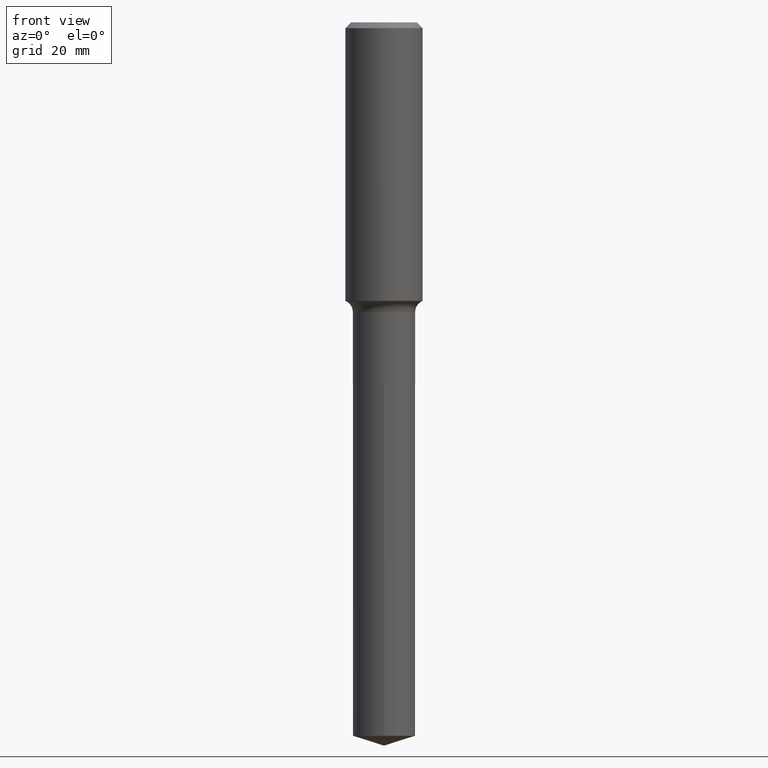
[diagram: clean part render]
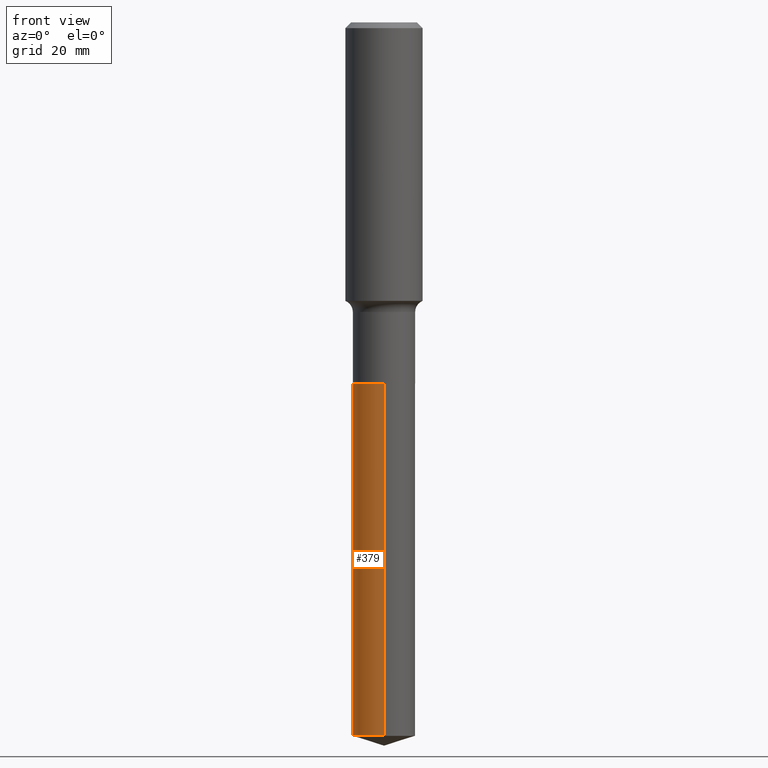
[diagram: same view with one face highlighted and labeled with its STEP entity id]
A machine part, front view. The second image highlights one B-rep face of the part: STEP entity #379.
In plain terms, the highlighted cylindrical surface (edge-blend (fillet) strip) has radius 5.1308 mm, axis along (-0, 0, 1).
Its self-contained STEP definition (entity closure, byte-faithful):
#2 = EDGE_LOOP ( 'NONE', ( #298, #86, #405, #138 ) ) ;
#6 = VECTOR ( 'NONE', #204, 39.37007874015748143 ) ;
#13 = CIRCLE ( 'NONE', #89, 0.2020000000000000129 ) ;
#24 = VERTEX_POINT ( 'NONE', #342 ) ;
#28 = CARTESIAN_POINT ( 'NONE',  ( 5.726065209682497413E-29, -8.175303554901225434E-15, -2.341500000000000359 ) ) ;
#39 = VERTEX_POINT ( 'NONE', #485 ) ;
#49 = LINE ( 'NONE', #250, #64 ) ;
#64 = VECTOR ( 'NONE', #247, 39.37007874015748143 ) ;
#70 = VERTEX_POINT ( 'NONE', #179 ) ;
#72 = CARTESIAN_POINT ( 'NONE',  ( 1.130669433001165338E-28, -1.614493023168768447E-14, -4.623809644646446060 ) ) ;
#86 = ORIENTED_EDGE ( 'NONE', *, *, #463, .T. ) ;
#89 = AXIS2_PLACEMENT_3D ( 'NONE', #205, #163, #358 ) ;
#138 = ORIENTED_EDGE ( 'NONE', *, *, #422, .F. ) ;
#163 = DIRECTION ( 'NONE',  ( -2.445167391470956759E-29, 3.491912981869311063E-15, 1.000000000000000000 ) ) ;
#173 = DIRECTION ( 'NONE',  ( -2.445167391470956759E-29, 3.491912981869311063E-15, 1.000000000000000000 ) ) ;
#179 = CARTESIAN_POINT ( 'NONE',  ( -1.410558460892513155E-15, -0.2020000000000162499, -4.623809644646445172 ) ) ;
#189 = EDGE_CURVE ( 'NONE', #24, #329, #467, .T. ) ;
#204 = DIRECTION ( 'NONE',  ( -2.445167391470956759E-29, 3.491912981869310668E-15, 1.000000000000000000 ) ) ;
#205 = CARTESIAN_POINT ( 'NONE',  ( 5.726065209682497413E-29, -8.175303554901225434E-15, -2.341500000000000359 ) ) ;
#209 = EDGE_CURVE ( 'NONE', #70, #39, #49, .T. ) ;
#247 = DIRECTION ( 'NONE',  ( -2.445167391470956759E-29, 3.491912981869310668E-15, 1.000000000000000000 ) ) ;
#248 = CYLINDRICAL_SURFACE ( 'NONE', #425, 0.2020000000000000129 ) ;
#250 = CARTESIAN_POINT ( 'NONE',  ( -1.410558460892568573E-15, -0.2020000000000081730, -2.341499999999999471 ) ) ;
#263 = DIRECTION ( 'NONE',  ( -2.445167391470956759E-29, 3.491912981869311063E-15, 1.000000000000000000 ) ) ;
#281 = CARTESIAN_POINT ( 'NONE',  ( 1.435296326235459659E-15, 0.2019999999999918527, -2.341500000000000803 ) ) ;
#282 = FACE_OUTER_BOUND ( 'NONE', #2, .T. ) ;
#298 = ORIENTED_EDGE ( 'NONE', *, *, #189, .F. ) ;
#329 = VERTEX_POINT ( 'NONE', #359 ) ;
#342 = CARTESIAN_POINT ( 'NONE',  ( 1.435296326235515669E-15, 0.2019999999999839146, -4.623809644646446060 ) ) ;
#358 = DIRECTION ( 'NONE',  ( -6.982962677686266711E-15, -1.000000000000000000, 4.057199990590489741E-15 ) ) ;
#359 = CARTESIAN_POINT ( 'NONE',  ( 1.435296326235515866E-15, 0.2019999999999918527, -2.341500000000000803 ) ) ;
#379 = ADVANCED_FACE ( 'NONE', ( #282 ), #248, .T. ) ;
#393 = DIRECTION ( 'NONE',  ( -6.982962677686266711E-15, -1.000000000000000000, 4.057199990590489741E-15 ) ) ;
#405 = ORIENTED_EDGE ( 'NONE', *, *, #209, .T. ) ;
#422 = EDGE_CURVE ( 'NONE', #329, #39, #13, .T. ) ;
#425 = AXIS2_PLACEMENT_3D ( 'NONE', #28, #263, #393 ) ;
#449 = DIRECTION ( 'NONE',  ( -6.982962677686266711E-15, -1.000000000000000000, 2.704799993726993161E-15 ) ) ;
#460 = AXIS2_PLACEMENT_3D ( 'NONE', #72, #173, #449 ) ;
#463 = EDGE_CURVE ( 'NONE', #24, #70, #480, .T. ) ;
#467 = LINE ( 'NONE', #281, #6 ) ;
#480 = CIRCLE ( 'NONE', #460, 0.2020000000000000129 ) ;
#485 = CARTESIAN_POINT ( 'NONE',  ( -1.410558460892568573E-15, -0.2020000000000081730, -2.341499999999999471 ) ) ;